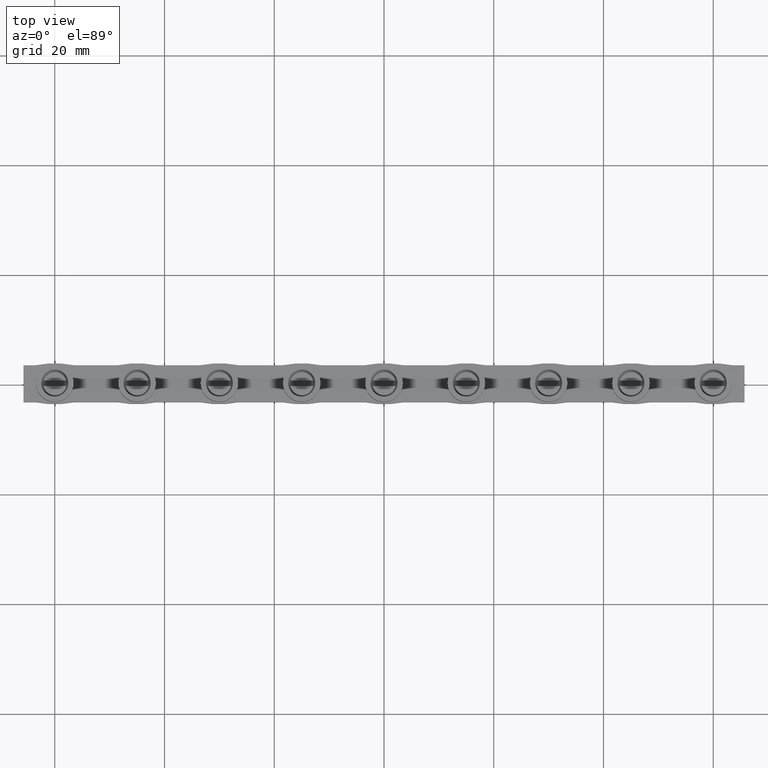
[diagram: clean part render]
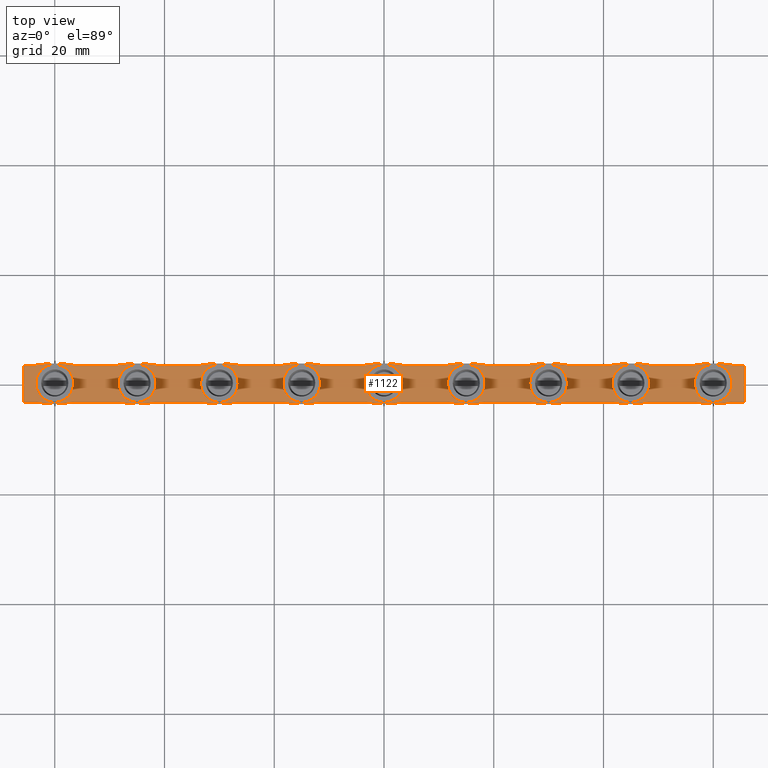
[diagram: same view with one face highlighted and labeled with its STEP entity id]
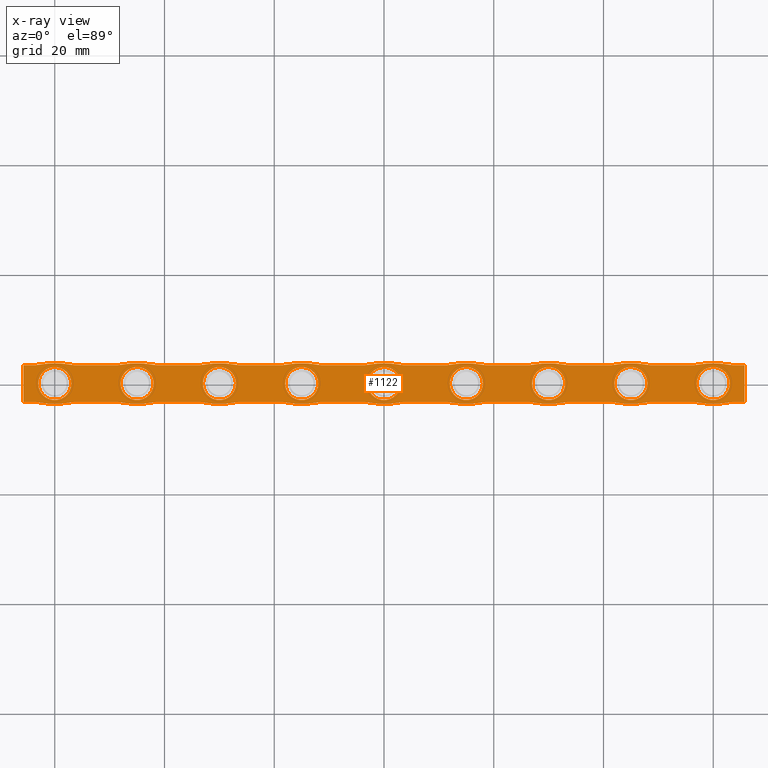
[diagram: x-ray of the same camera — body ghosted, the highlighted face saturated]
A machine part, top view. The second image highlights one B-rep face of the part: STEP entity #1122.
The next image is the same camera in x-ray: the body ghosted, the highlighted face saturated — about 0% of this face is hidden behind the body in this view.
In plain terms, the highlighted planar face has unit normal (0, 0, -1).
Its self-contained STEP definition (entity closure, byte-faithful):
#1122 = ADVANCED_FACE ( 'NONE', ( #8732, #8731, #8769, #8763, #8771, #8749, #8738, #8748, #8773, #8761 ), #8745, .F. ) ;
#2181 = AXIS2_PLACEMENT_3D ( 'NONE', #8752, #8737, #8774 ) ;
#4023 = VERTEX_POINT ( 'NONE', #14222 ) ;
#4052 = VERTEX_POINT ( 'NONE', #14217 ) ;
#4059 = VERTEX_POINT ( 'NONE', #14235 ) ;
#4088 = VERTEX_POINT ( 'NONE', #14246 ) ;
#4102 = VERTEX_POINT ( 'NONE', #14281 ) ;
#4116 = VERTEX_POINT ( 'NONE', #14343 ) ;
#4152 = VERTEX_POINT ( 'NONE', #14303 ) ;
#4160 = VERTEX_POINT ( 'NONE', #14329 ) ;
#4166 = VERTEX_POINT ( 'NONE', #14304 ) ;
#4176 = VERTEX_POINT ( 'NONE', #14376 ) ;
#4199 = VERTEX_POINT ( 'NONE', #14369 ) ;
#4212 = VERTEX_POINT ( 'NONE', #14362 ) ;
#4225 = VERTEX_POINT ( 'NONE', #14351 ) ;
#4252 = VERTEX_POINT ( 'NONE', #14422 ) ;
#4279 = VERTEX_POINT ( 'NONE', #13897 ) ;
#4300 = VERTEX_POINT ( 'NONE', #13877 ) ;
#4305 = VERTEX_POINT ( 'NONE', #13855 ) ;
#4312 = VERTEX_POINT ( 'NONE', #13884 ) ;
#4319 = VERTEX_POINT ( 'NONE', #13899 ) ;
#4328 = VERTEX_POINT ( 'NONE', #13881 ) ;
#4329 = VERTEX_POINT ( 'NONE', #13912 ) ;
#4330 = VERTEX_POINT ( 'NONE', #13885 ) ;
#4345 = VERTEX_POINT ( 'NONE', #14115 ) ;
#4366 = VERTEX_POINT ( 'NONE', #7494 ) ;
#4367 = VERTEX_POINT ( 'NONE', #7005 ) ;
#4376 = VERTEX_POINT ( 'NONE', #7000 ) ;
#4377 = VERTEX_POINT ( 'NONE', #7007 ) ;
#4378 = VERTEX_POINT ( 'NONE', #6986 ) ;
#4379 = VERTEX_POINT ( 'NONE', #6987 ) ;
#4380 = VERTEX_POINT ( 'NONE', #7008 ) ;
#4381 = VERTEX_POINT ( 'NONE', #7011 ) ;
#4382 = VERTEX_POINT ( 'NONE', #7009 ) ;
#4383 = VERTEX_POINT ( 'NONE', #7010 ) ;
#4384 = VERTEX_POINT ( 'NONE', #6999 ) ;
#4385 = VERTEX_POINT ( 'NONE', #7012 ) ;
#4386 = VERTEX_POINT ( 'NONE', #7001 ) ;
#4387 = VERTEX_POINT ( 'NONE', #6988 ) ;
#4388 = VERTEX_POINT ( 'NONE', #6990 ) ;
#4389 = VERTEX_POINT ( 'NONE', #6991 ) ;
#4390 = VERTEX_POINT ( 'NONE', #6994 ) ;
#4391 = VERTEX_POINT ( 'NONE', #6995 ) ;
#4392 = VERTEX_POINT ( 'NONE', #6996 ) ;
#4393 = VERTEX_POINT ( 'NONE', #6997 ) ;
#4394 = VERTEX_POINT ( 'NONE', #7002 ) ;
#4395 = VERTEX_POINT ( 'NONE', #6998 ) ;
#4396 = VERTEX_POINT ( 'NONE', #7003 ) ;
#4397 = VERTEX_POINT ( 'NONE', #7034 ) ;
#4398 = VERTEX_POINT ( 'NONE', #7028 ) ;
#4399 = VERTEX_POINT ( 'NONE', #7033 ) ;
#4400 = VERTEX_POINT ( 'NONE', #7035 ) ;
#4401 = VERTEX_POINT ( 'NONE', #7041 ) ;
#4402 = VERTEX_POINT ( 'NONE', #7019 ) ;
#4403 = VERTEX_POINT ( 'NONE', #7025 ) ;
#4404 = VERTEX_POINT ( 'NONE', #7017 ) ;
#4410 = VERTEX_POINT ( 'NONE', #7024 ) ;
#4412 = VERTEX_POINT ( 'NONE', #7029 ) ;
#4415 = VERTEX_POINT ( 'NONE', #7020 ) ;
#4416 = VERTEX_POINT ( 'NONE', #7031 ) ;
#4766 = ORIENTED_EDGE ( 'NONE', *, *, #11951, .F. ) ;
#4768 = ORIENTED_EDGE ( 'NONE', *, *, #11906, .T. ) ;
#4769 = ORIENTED_EDGE ( 'NONE', *, *, #11987, .F. ) ;
#4773 = ORIENTED_EDGE ( 'NONE', *, *, #11664, .T. ) ;
#4779 = ORIENTED_EDGE ( 'NONE', *, *, #11761, .T. ) ;
#4782 = ORIENTED_EDGE ( 'NONE', *, *, #11954, .T. ) ;
#4783 = ORIENTED_EDGE ( 'NONE', *, *, #11996, .F. ) ;
#4787 = ORIENTED_EDGE ( 'NONE', *, *, #12048, .T. ) ;
#4790 = ORIENTED_EDGE ( 'NONE', *, *, #11997, .F. ) ;
#4796 = ORIENTED_EDGE ( 'NONE', *, *, #11980, .F. ) ;
#4798 = ORIENTED_EDGE ( 'NONE', *, *, #12031, .T. ) ;
#4799 = ORIENTED_EDGE ( 'NONE', *, *, #12000, .T. ) ;
#4800 = ORIENTED_EDGE ( 'NONE', *, *, #12007, .T. ) ;
#4802 = ORIENTED_EDGE ( 'NONE', *, *, #11880, .T. ) ;
#4803 = ORIENTED_EDGE ( 'NONE', *, *, #11982, .T. ) ;
#4805 = ORIENTED_EDGE ( 'NONE', *, *, #11919, .F. ) ;
#4806 = ORIENTED_EDGE ( 'NONE', *, *, #11985, .F. ) ;
#4807 = ORIENTED_EDGE ( 'NONE', *, *, #11986, .F. ) ;
#4808 = ORIENTED_EDGE ( 'NONE', *, *, #12046, .T. ) ;
#4809 = ORIENTED_EDGE ( 'NONE', *, *, #11960, .F. ) ;
#4810 = ORIENTED_EDGE ( 'NONE', *, *, #11958, .F. ) ;
#4811 = ORIENTED_EDGE ( 'NONE', *, *, #11947, .F. ) ;
#4813 = ORIENTED_EDGE ( 'NONE', *, *, #11918, .F. ) ;
#4814 = ORIENTED_EDGE ( 'NONE', *, *, #11801, .F. ) ;
#4818 = ORIENTED_EDGE ( 'NONE', *, *, #11973, .F. ) ;
#4819 = ORIENTED_EDGE ( 'NONE', *, *, #11925, .F. ) ;
#4822 = ORIENTED_EDGE ( 'NONE', *, *, #12006, .F. ) ;
#4823 = ORIENTED_EDGE ( 'NONE', *, *, #12035, .F. ) ;
#4824 = ORIENTED_EDGE ( 'NONE', *, *, #12058, .T. ) ;
#4826 = ORIENTED_EDGE ( 'NONE', *, *, #11968, .T. ) ;
#4827 = ORIENTED_EDGE ( 'NONE', *, *, #11949, .F. ) ;
#4831 = ORIENTED_EDGE ( 'NONE', *, *, #11666, .T. ) ;
#4832 = ORIENTED_EDGE ( 'NONE', *, *, #11993, .F. ) ;
#4833 = ORIENTED_EDGE ( 'NONE', *, *, #11788, .T. ) ;
#4842 = ORIENTED_EDGE ( 'NONE', *, *, #11991, .F. ) ;
#4844 = ORIENTED_EDGE ( 'NONE', *, *, #11963, .T. ) ;
#4848 = ORIENTED_EDGE ( 'NONE', *, *, #11967, .T. ) ;
#4849 = ORIENTED_EDGE ( 'NONE', *, *, #11945, .F. ) ;
#4852 = ORIENTED_EDGE ( 'NONE', *, *, #12003, .F. ) ;
#4853 = ORIENTED_EDGE ( 'NONE', *, *, #12040, .F. ) ;
#4854 = ORIENTED_EDGE ( 'NONE', *, *, #11990, .F. ) ;
#4855 = ORIENTED_EDGE ( 'NONE', *, *, #11981, .F. ) ;
#4859 = ORIENTED_EDGE ( 'NONE', *, *, #11979, .F. ) ;
#4863 = ORIENTED_EDGE ( 'NONE', *, *, #12017, .F. ) ;
#4864 = ORIENTED_EDGE ( 'NONE', *, *, #12027, .F. ) ;
#4865 = ORIENTED_EDGE ( 'NONE', *, *, #12013, .F. ) ;
#4866 = ORIENTED_EDGE ( 'NONE', *, *, #12051, .F. ) ;
#4868 = ORIENTED_EDGE ( 'NONE', *, *, #12047, .F. ) ;
#4870 = ORIENTED_EDGE ( 'NONE', *, *, #11988, .T. ) ;
#4871 = ORIENTED_EDGE ( 'NONE', *, *, #11978, .F. ) ;
#4872 = ORIENTED_EDGE ( 'NONE', *, *, #12043, .T. ) ;
#4873 = ORIENTED_EDGE ( 'NONE', *, *, #11953, .T. ) ;
#4879 = ORIENTED_EDGE ( 'NONE', *, *, #11989, .T. ) ;
#4883 = ORIENTED_EDGE ( 'NONE', *, *, #12053, .F. ) ;
#4889 = ORIENTED_EDGE ( 'NONE', *, *, #12050, .T. ) ;
#4890 = ORIENTED_EDGE ( 'NONE', *, *, #11689, .T. ) ;
#4909 = ORIENTED_EDGE ( 'NONE', *, *, #11658, .T. ) ;
#4953 = ORIENTED_EDGE ( 'NONE', *, *, #12032, .T. ) ;
#5800 = EDGE_LOOP ( 'NONE', ( #4822, #4814 ) ) ;
#5801 = EDGE_LOOP ( 'NONE', ( #4909, #4953 ) ) ;
#5803 = EDGE_LOOP ( 'NONE', ( #4890, #4798 ) ) ;
#5804 = EDGE_LOOP ( 'NONE', ( #4833, #4879 ) ) ;
#5813 = EDGE_LOOP ( 'NONE', ( #4779, #4826 ) ) ;
#5824 = EDGE_LOOP ( 'NONE', ( #4768, #4800 ) ) ;
#5829 = EDGE_LOOP ( 'NONE', ( #4819, #4810, #4849, #4811, #4813, #4805, #4855, #4806, #4827, #4871, #4852, #4807, #4859, #4796, #4769, #4809, #4790, #4766, #4818, #4803, #4823, #4824, #4787, #4808, #4844, #4872, #4870, #4799, #4853, #4873, #4783, #4854, #4868, #4863, #4842, #4832, #4865, #4864, #4883, #4866 ) ) ;
#5830 = EDGE_LOOP ( 'NONE', ( #4773, #4889 ) ) ;
#5841 = EDGE_LOOP ( 'NONE', ( #4831, #4848 ) ) ;
#5843 = EDGE_LOOP ( 'NONE', ( #4802, #4782 ) ) ;
#6986 = CARTESIAN_POINT ( 'NONE',  ( 33.50000000000169800, 3.350000000000149300, -0.9000000000000014700 ) ) ;
#6987 = CARTESIAN_POINT ( 'NONE',  ( 71.50000000000156300, 3.350000000000323800, -0.9000000000000014700 ) ) ;
#6988 = CARTESIAN_POINT ( 'NONE',  ( 18.50000000000169500, -3.349999999999860200, -0.9000000000000014700 ) ) ;
#6990 = CARTESIAN_POINT ( 'NONE',  ( 93.50000000000169100, 3.350000000000391300, -0.9000000000000014700 ) ) ;
#6991 = CARTESIAN_POINT ( 'NONE',  ( -3.500000000002025000, -3.349999999999915700, -0.9000000000000014700 ) ) ;
#6994 = CARTESIAN_POINT ( 'NONE',  ( 78.50000000000169100, 3.350000000000330900, -0.9000000000000014700 ) ) ;
#6995 = CARTESIAN_POINT ( 'NONE',  ( 63.50000000000169100, 3.350000000000270100, -0.9000000000000014700 ) ) ;
#6996 = CARTESIAN_POINT ( 'NONE',  ( -5.700000000000000200, 3.350000000000084500, -0.9000000000000014700 ) ) ;
#6997 = CARTESIAN_POINT ( 'NONE',  ( 56.50000000000156300, 3.350000000000263000, -0.9000000000000014700 ) ) ;
#6998 = CARTESIAN_POINT ( 'NONE',  ( 41.50000000000156300, 3.350000000000202100, -0.9000000000000014700 ) ) ;
#6999 = CARTESIAN_POINT ( 'NONE',  ( 101.5000000000015600, 3.350000000000444600, -0.9000000000000014700 ) ) ;
#7000 = CARTESIAN_POINT ( 'NONE',  ( 123.5000000000016900, 3.350000000000512600, -0.9000000000000014700 ) ) ;
#7001 = CARTESIAN_POINT ( 'NONE',  ( 33.50000000000368100, -3.349999999999852200, -0.9000000000000014700 ) ) ;
#7002 = CARTESIAN_POINT ( 'NONE',  ( 63.50000000000368100, -3.349999999999731400, -0.9000000000000014700 ) ) ;
#7003 = CARTESIAN_POINT ( 'NONE',  ( 11.50000000000156100, 3.350000000000081400, -0.9000000000000014700 ) ) ;
#7005 = CARTESIAN_POINT ( 'NONE',  ( 125.7000000000016400, 3.350000000000511700, -0.9000000000000014700 ) ) ;
#7007 = CARTESIAN_POINT ( 'NONE',  ( -3.500000000000049700, 3.350000000000085800, -0.9000000000000014700 ) ) ;
#7008 = CARTESIAN_POINT ( 'NONE',  ( 18.50000000000169500, 3.350000000000141800, -0.9000000000000014700 ) ) ;
#7009 = CARTESIAN_POINT ( 'NONE',  ( 101.4999999999999100, -3.349999999999579100, -0.9000000000000014700 ) ) ;
#7010 = CARTESIAN_POINT ( 'NONE',  ( 3.500000000000087900, 3.350000000000080500, -0.9000000000000014700 ) ) ;
#7011 = CARTESIAN_POINT ( 'NONE',  ( 108.5000000000036800, -3.349999999999549300, -0.9000000000000014700 ) ) ;
#7012 = CARTESIAN_POINT ( 'NONE',  ( 116.4999999999999100, -3.349999999999518300, -0.9000000000000014700 ) ) ;
#7017 = CARTESIAN_POINT ( 'NONE',  ( 86.49999999999991500, -3.349999999999639900, -0.9000000000000014700 ) ) ;
#7019 = CARTESIAN_POINT ( 'NONE',  ( 86.50000000000156300, 3.350000000000383800, -0.9000000000000014700 ) ) ;
#7020 = CARTESIAN_POINT ( 'NONE',  ( 78.50000000000368100, -3.349999999999670600, -0.9000000000000014700 ) ) ;
#7024 = CARTESIAN_POINT ( 'NONE',  ( 93.50000000000368100, -3.349999999999610200, -0.9000000000000014700 ) ) ;
#7025 = CARTESIAN_POINT ( 'NONE',  ( 11.49999999999990900, -3.349999999999942400, -0.9000000000000014700 ) ) ;
#7028 = CARTESIAN_POINT ( 'NONE',  ( 48.50000000000368100, -3.349999999999791800, -0.9000000000000014700 ) ) ;
#7029 = CARTESIAN_POINT ( 'NONE',  ( 71.49999999999991500, -3.349999999999699900, -0.9000000000000014700 ) ) ;
#7031 = CARTESIAN_POINT ( 'NONE',  ( 41.49999999999991500, -3.349999999999821600, -0.9000000000000014700 ) ) ;
#7033 = CARTESIAN_POINT ( 'NONE',  ( -5.699999999999996600, -3.349999999999916600, -0.9000000000000014700 ) ) ;
#7034 = CARTESIAN_POINT ( 'NONE',  ( 3.500000000001742600, -3.349999999999943200, -0.9000000000000014700 ) ) ;
#7035 = CARTESIAN_POINT ( 'NONE',  ( 56.49999999999991500, -3.349999999999760700, -0.9000000000000014700 ) ) ;
#7041 = CARTESIAN_POINT ( 'NONE',  ( 48.50000000000169100, 3.350000000000209700, -0.9000000000000014700 ) ) ;
#7494 = CARTESIAN_POINT ( 'NONE',  ( 26.49999999999990800, -3.349999999999881500, -0.9000000000000014700 ) ) ;
#7534 = LINE ( 'NONE', #7550, #13035 ) ;
#7541 = DIRECTION ( 'NONE',  ( -1.000000000000000000, -2.944367993170587500E-016, 0.0000000000000000000 ) ) ;
#7548 = CARTESIAN_POINT ( 'NONE',  ( 90.00000000000164800, 13.97500000000509400, -0.9000000000000014700 ) ) ;
#7550 = CARTESIAN_POINT ( 'NONE',  ( 31.15000000000001300, 3.350000000000084500, -0.9000000000000014700 ) ) ;
#7556 = DIRECTION ( 'NONE',  ( -1.000000000000000000, -1.245679091791856200E-016, -0.0000000000000000000 ) ) ;
#7562 = DIRECTION ( 'NONE',  ( -0.0000000000000000000, -0.0000000000000000000, -1.000000000000000000 ) ) ;
#7567 = DIRECTION ( 'NONE',  ( 1.000000000000000000, 2.944367993170585000E-016, 0.0000000000000000000 ) ) ;
#7568 = CARTESIAN_POINT ( 'NONE',  ( 103.8500000000016300, -3.349999999999492100, -0.9000000000000014700 ) ) ;
#7570 = LINE ( 'NONE', #7600, #12914 ) ;
#7576 = LINE ( 'NONE', #7593, #12899 ) ;
#7582 = CARTESIAN_POINT ( 'NONE',  ( 120.0000000000016500, 13.97500000000521500, -0.9000000000000014700 ) ) ;
#7584 = DIRECTION ( 'NONE',  ( -1.000000000000000000, -1.245679091791855700E-016, -0.0000000000000000000 ) ) ;
#7585 = DIRECTION ( 'NONE',  ( -1.000000000000000000, -2.944367993170587500E-016, 0.0000000000000000000 ) ) ;
#7587 = CARTESIAN_POINT ( 'NONE',  ( 105.0000000000016500, -13.97500000000442500, -0.9000000000000014700 ) ) ;
#7588 = DIRECTION ( 'NONE',  ( -0.0000000000000000000, -0.0000000000000000000, -1.000000000000000000 ) ) ;
#7589 = DIRECTION ( 'NONE',  ( -0.0000000000000000000, -0.0000000000000000000, -1.000000000000000000 ) ) ;
#7593 = CARTESIAN_POINT ( 'NONE',  ( 46.15000000000001300, -3.349999999999856600, -0.9000000000000014700 ) ) ;
#7594 = DIRECTION ( 'NONE',  ( 1.000000000000000000, 1.245679091791856200E-016, -0.0000000000000000000 ) ) ;
#7600 = CARTESIAN_POINT ( 'NONE',  ( 13.85000000000164300, 3.350000000000145800, -0.9000000000000014700 ) ) ;
#7601 = DIRECTION ( 'NONE',  ( 1.000000000000000000, 1.245679091791855700E-016, -0.0000000000000000000 ) ) ;
#7605 = LINE ( 'NONE', #7568, #12956 ) ;
#7607 = LINE ( 'NONE', #7608, #12957 ) ;
#7608 = CARTESIAN_POINT ( 'NONE',  ( 28.85000000000164300, 3.350000000000206100, -0.9000000000000014700 ) ) ;
#7609 = CARTESIAN_POINT ( 'NONE',  ( 15.00000000000165000, 1.868518637687989600E-015, -0.9000000000000014700 ) ) ;
#7611 = CARTESIAN_POINT ( 'NONE',  ( 90.00000000000164800, 3.046974012975282300E-013, -0.9000000000000014700 ) ) ;
#7612 = DIRECTION ( 'NONE',  ( 0.0000000000000000000, 0.0000000000000000000, -1.000000000000000000 ) ) ;
#7614 = DIRECTION ( 'NONE',  ( 1.000000000000000000, 2.491358183583654200E-016, 0.0000000000000000000 ) ) ;
#7616 = CARTESIAN_POINT ( 'NONE',  ( 88.85000000000164300, -3.349999999999552400, -0.9000000000000014700 ) ) ;
#7619 = CARTESIAN_POINT ( 'NONE',  ( 45.00000000000164800, 1.230000717016241000E-013, -0.9000000000000014700 ) ) ;
#7622 = DIRECTION ( 'NONE',  ( 0.0000000000000000000, 0.0000000000000000000, -1.000000000000000000 ) ) ;
#7628 = DIRECTION ( 'NONE',  ( 1.000000000000000000, 2.491358183583736600E-016, 0.0000000000000000000 ) ) ;
#7629 = DIRECTION ( 'NONE',  ( 0.0000000000000000000, 0.0000000000000000000, -1.000000000000000000 ) ) ;
#7631 = DIRECTION ( 'NONE',  ( 1.000000000000000000, 1.245679091791855700E-016, -0.0000000000000000000 ) ) ;
#7634 = LINE ( 'NONE', #7616, #12904 ) ;
#7635 = LINE ( 'NONE', #7649, #12916 ) ;
#7637 = DIRECTION ( 'NONE',  ( 2.009125974575783600E-016, -1.000000000000000000, 0.0000000000000000000 ) ) ;
#7638 = DIRECTION ( 'NONE',  ( 1.000000000000000000, 2.491358183583712400E-016, 0.0000000000000000000 ) ) ;
#7641 = DIRECTION ( 'NONE',  ( -1.000000000000000000, -1.245679091791855700E-016, -0.0000000000000000000 ) ) ;
#7649 = CARTESIAN_POINT ( 'NONE',  ( -5.699999999999996600, -3.349999999999916200, -0.9000000000000014700 ) ) ;
#7656 = DIRECTION ( 'NONE',  ( 1.000000000000000000, 2.944367993170587500E-016, 0.0000000000000000000 ) ) ;
#7657 = CARTESIAN_POINT ( 'NONE',  ( 43.85000000000163600, 3.350000000000267000, -0.9000000000000014700 ) ) ;
#7658 = DIRECTION ( 'NONE',  ( 1.000000000000000000, 1.245679091791855700E-016, -0.0000000000000000000 ) ) ;
#7659 = CARTESIAN_POINT ( 'NONE',  ( 46.15000000000001300, 3.350000000000145300, -0.9000000000000014700 ) ) ;
#7660 = CARTESIAN_POINT ( 'NONE',  ( 30.00000000000165200, -13.97500000000472700, -0.9000000000000014700 ) ) ;
#7661 = DIRECTION ( 'NONE',  ( -1.000000000000000000, -1.245679091791856200E-016, -0.0000000000000000000 ) ) ;
#7666 = DIRECTION ( 'NONE',  ( 1.000000000000000000, 1.245679091791855700E-016, -0.0000000000000000000 ) ) ;
#7670 = LINE ( 'NONE', #7678, #13010 ) ;
#7678 = CARTESIAN_POINT ( 'NONE',  ( 73.85000000000164300, 3.350000000000387800, -0.9000000000000014700 ) ) ;
#7680 = LINE ( 'NONE', #7657, #12974 ) ;
#7682 = DIRECTION ( 'NONE',  ( 1.000000000000000000, 2.944367993170586000E-016, 0.0000000000000000000 ) ) ;
#7685 = DIRECTION ( 'NONE',  ( -0.0000000000000000000, -0.0000000000000000000, -1.000000000000000000 ) ) ;
#7687 = DIRECTION ( 'NONE',  ( -0.0000000000000000000, -0.0000000000000000000, -1.000000000000000000 ) ) ;
#7688 = CARTESIAN_POINT ( 'NONE',  ( 75.00000000000164800, -13.97500000000454500, -0.9000000000000014700 ) ) ;
#7689 = DIRECTION ( 'NONE',  ( 1.000000000000000000, 2.944367993170585000E-016, 0.0000000000000000000 ) ) ;
#7691 = LINE ( 'NONE', #7659, #13018 ) ;
#7692 = CARTESIAN_POINT ( 'NONE',  ( 120.0000000000016500, -13.97500000000436400, -0.9000000000000014700 ) ) ;
#7693 = DIRECTION ( 'NONE',  ( -0.0000000000000000000, -0.0000000000000000000, -1.000000000000000000 ) ) ;
#7694 = CARTESIAN_POINT ( 'NONE',  ( 58.85000000000163600, 3.350000000000327400, -0.9000000000000014700 ) ) ;
#7695 = CARTESIAN_POINT ( 'NONE',  ( 60.00000000000164100, 13.97500000000497300, -0.9000000000000014700 ) ) ;
#7697 = DIRECTION ( 'NONE',  ( 0.0000000000000000000, 0.0000000000000000000, 1.000000000000000000 ) ) ;
#7698 = DIRECTION ( 'NONE',  ( 1.000000000000000000, 2.491358183583736600E-016, 0.0000000000000000000 ) ) ;
#7699 = CARTESIAN_POINT ( 'NONE',  ( 30.00000000000164500, 13.97500000000485100, -0.9000000000000014700 ) ) ;
#7700 = DIRECTION ( 'NONE',  ( -0.0000000000000000000, -0.0000000000000000000, -1.000000000000000000 ) ) ;
#7701 = DIRECTION ( 'NONE',  ( 0.0000000000000000000, 0.0000000000000000000, -1.000000000000000000 ) ) ;
#7703 = LINE ( 'NONE', #7720, #13001 ) ;
#7704 = LINE ( 'NONE', #7717, #12990 ) ;
#7705 = DIRECTION ( 'NONE',  ( 1.000000000000000000, 1.245679091791855700E-016, -0.0000000000000000000 ) ) ;
#7706 = CARTESIAN_POINT ( 'NONE',  ( 60.00000000000164800, 1.835658482335921500E-013, -0.9000000000000014700 ) ) ;
#7707 = DIRECTION ( 'NONE',  ( -1.000000000000000000, -1.245679091791855700E-016, -0.0000000000000000000 ) ) ;
#7711 = CARTESIAN_POINT ( 'NONE',  ( 88.85000000000164300, 3.350000000000448600, -0.9000000000000014700 ) ) ;
#7712 = DIRECTION ( 'NONE',  ( -1.000000000000000000, -2.944367993170586000E-016, 0.0000000000000000000 ) ) ;
#7714 = CARTESIAN_POINT ( 'NONE',  ( 1.734289795103002200E-015, 13.97500000000478900, -0.9000000000000014700 ) ) ;
#7715 = DIRECTION ( 'NONE',  ( -0.0000000000000000000, -0.0000000000000000000, -1.000000000000000000 ) ) ;
#7716 = CARTESIAN_POINT ( 'NONE',  ( 60.00000000000164800, -13.97500000000460600, -0.9000000000000014700 ) ) ;
#7717 = CARTESIAN_POINT ( 'NONE',  ( 13.85000000000164300, -3.349999999999855300, -0.9000000000000014700 ) ) ;
#7718 = DIRECTION ( 'NONE',  ( -0.0000000000000000000, -0.0000000000000000000, -1.000000000000000000 ) ) ;
#7720 = CARTESIAN_POINT ( 'NONE',  ( 43.85000000000163600, -3.349999999999734100, -0.9000000000000014700 ) ) ;
#7722 = DIRECTION ( 'NONE',  ( 1.000000000000000000, 1.245679091791855700E-016, -0.0000000000000000000 ) ) ;
#7723 = DIRECTION ( 'NONE',  ( 1.000000000000000000, 2.944367993170587500E-016, 0.0000000000000000000 ) ) ;
#7730 = LINE ( 'NONE', #7711, #12975 ) ;
#7731 = LINE ( 'NONE', #7694, #12984 ) ;
#7732 = DIRECTION ( 'NONE',  ( 1.000000000000000000, 0.0000000000000000000, 0.0000000000000000000 ) ) ;
#7733 = DIRECTION ( 'NONE',  ( -1.000000000000000000, -1.245679091791855700E-016, -0.0000000000000000000 ) ) ;
#7739 = CARTESIAN_POINT ( 'NONE',  ( 90.00000000000164800, -13.97500000000448300, -0.9000000000000014700 ) ) ;
#7740 = CARTESIAN_POINT ( 'NONE',  ( 31.15000000000001300, -3.349999999999917500, -0.9000000000000014700 ) ) ;
#7745 = DIRECTION ( 'NONE',  ( -0.0000000000000000000, -0.0000000000000000000, -1.000000000000000000 ) ) ;
#7746 = CARTESIAN_POINT ( 'NONE',  ( 30.00000000000165200, 6.243429516965604400E-014, -0.9000000000000014700 ) ) ;
#7747 = DIRECTION ( 'NONE',  ( -1.000000000000000000, -2.944367993170586500E-016, 0.0000000000000000000 ) ) ;
#7748 = DIRECTION ( 'NONE',  ( 1.000000000000000000, 1.245679091791856200E-016, -0.0000000000000000000 ) ) ;
#7754 = CARTESIAN_POINT ( 'NONE',  ( 45.00000000000164800, -13.97500000000466600, -0.9000000000000014700 ) ) ;
#7756 = DIRECTION ( 'NONE',  ( 0.0000000000000000000, 0.0000000000000000000, -1.000000000000000000 ) ) ;
#7757 = DIRECTION ( 'NONE',  ( 1.000000000000000000, 2.491358183583695200E-016, 0.0000000000000000000 ) ) ;
#7758 = DIRECTION ( 'NONE',  ( 1.000000000000000000, 2.944367993170587500E-016, 0.0000000000000000000 ) ) ;
#7769 = DIRECTION ( 'NONE',  ( 0.0000000000000000000, 0.0000000000000000000, 1.000000000000000000 ) ) ;
#7770 = DIRECTION ( 'NONE',  ( -1.000000000000000000, 0.0000000000000000000, 0.0000000000000000000 ) ) ;
#7772 = DIRECTION ( 'NONE',  ( 1.000000000000000000, 2.944367993170585000E-016, 0.0000000000000000000 ) ) ;
#7773 = DIRECTION ( 'NONE',  ( -0.0000000000000000000, -0.0000000000000000000, -1.000000000000000000 ) ) ;
#7776 = LINE ( 'NONE', #7740, #13020 ) ;
#7779 = CARTESIAN_POINT ( 'NONE',  ( 0.0000000000000000000, 0.0000000000000000000, -0.9000000000000014700 ) ) ;
#7788 = DIRECTION ( 'NONE',  ( -0.0000000000000000000, -0.0000000000000000000, -1.000000000000000000 ) ) ;
#7789 = CARTESIAN_POINT ( 'NONE',  ( 28.85000000000164300, -3.349999999999794900, -0.9000000000000014700 ) ) ;
#7800 = DIRECTION ( 'NONE',  ( -1.000000000000000000, -1.245679091791855700E-016, -0.0000000000000000000 ) ) ;
#7817 = CARTESIAN_POINT ( 'NONE',  ( 75.00000000000164800, 13.97500000000503400, -0.9000000000000014700 ) ) ;
#7825 = DIRECTION ( 'NONE',  ( -1.000000000000000000, -2.944367993170587500E-016, 0.0000000000000000000 ) ) ;
#7835 = LINE ( 'NONE', #7789, #13047 ) ;
#7859 = CARTESIAN_POINT ( 'NONE',  ( 58.85000000000163600, -3.349999999999673700, -0.9000000000000014700 ) ) ;
#7860 = DIRECTION ( 'NONE',  ( -1.000000000000000000, -1.245679091791855700E-016, -0.0000000000000000000 ) ) ;
#7875 = LINE ( 'NONE', #7859, #13060 ) ;
#7905 = DIRECTION ( 'NONE',  ( 0.0000000000000000000, 0.0000000000000000000, -1.000000000000000000 ) ) ;
#7906 = DIRECTION ( 'NONE',  ( 0.0000000000000000000, 0.0000000000000000000, -1.000000000000000000 ) ) ;
#7914 = DIRECTION ( 'NONE',  ( 1.000000000000000000, 2.491358183583654200E-016, 0.0000000000000000000 ) ) ;
#7916 = CARTESIAN_POINT ( 'NONE',  ( 75.00000000000164800, 2.441316247655602000E-013, -0.9000000000000014700 ) ) ;
#7920 = DIRECTION ( 'NONE',  ( 1.000000000000000000, 2.491358183583654200E-016, 0.0000000000000000000 ) ) ;
#7940 = CARTESIAN_POINT ( 'NONE',  ( 120.0000000000016500, 4.258289543614643900E-013, -0.9000000000000014700 ) ) ;
#7945 = DIRECTION ( 'NONE',  ( -0.0000000000000000000, -0.0000000000000000000, -1.000000000000000000 ) ) ;
#7946 = CARTESIAN_POINT ( 'NONE',  ( 15.00000000000164500, 13.97500000000479000, -0.9000000000000014700 ) ) ;
#7961 = DIRECTION ( 'NONE',  ( -0.0000000000000000000, -0.0000000000000000000, -1.000000000000000000 ) ) ;
#7963 = DIRECTION ( 'NONE',  ( -1.000000000000000000, -2.944367993170586500E-016, 0.0000000000000000000 ) ) ;
#7969 = CARTESIAN_POINT ( 'NONE',  ( 15.00000000000164800, -13.97500000000478700, -0.9000000000000014700 ) ) ;
#7975 = LINE ( 'NONE', #8006, #13027 ) ;
#7979 = DIRECTION ( 'NONE',  ( 1.000000000000000000, 2.944367993170586000E-016, 0.0000000000000000000 ) ) ;
#7993 = LINE ( 'NONE', #8017, #13075 ) ;
#7995 = DIRECTION ( 'NONE',  ( 0.0000000000000000000, 0.0000000000000000000, -1.000000000000000000 ) ) ;
#7996 = DIRECTION ( 'NONE',  ( 1.000000000000000000, 1.245679091791856200E-016, -0.0000000000000000000 ) ) ;
#7997 = DIRECTION ( 'NONE',  ( -1.000000000000000000, 0.0000000000000000000, 0.0000000000000000000 ) ) ;
#7998 = DIRECTION ( 'NONE',  ( -1.000000000000000000, -1.245679091791855700E-016, -0.0000000000000000000 ) ) ;
#8002 = DIRECTION ( 'NONE',  ( 1.000000000000000000, 2.491358183583654200E-016, 0.0000000000000000000 ) ) ;
#8005 = DIRECTION ( 'NONE',  ( -1.000000000000000000, -2.944367993170586500E-016, 0.0000000000000000000 ) ) ;
#8006 = CARTESIAN_POINT ( 'NONE',  ( 16.15000000000000900, -3.349999999999913900, -0.9000000000000014700 ) ) ;
#8008 = DIRECTION ( 'NONE',  ( -0.0000000000000000000, -0.0000000000000000000, -1.000000000000000000 ) ) ;
#8012 = DIRECTION ( 'NONE',  ( -1.000000000000000000, -1.245679091791856200E-016, -0.0000000000000000000 ) ) ;
#8013 = CARTESIAN_POINT ( 'NONE',  ( 45.00000000000164100, 13.97500000000491300, -0.9000000000000014700 ) ) ;
#8014 = CARTESIAN_POINT ( 'NONE',  ( 5.128276275852789100E-015, -13.97500000000478900, -0.9000000000000014700 ) ) ;
#8015 = CARTESIAN_POINT ( 'NONE',  ( 73.85000000000164300, -3.349999999999613300, -0.9000000000000014700 ) ) ;
#8017 = CARTESIAN_POINT ( 'NONE',  ( 16.15000000000000900, 3.350000000000087100, -0.9000000000000014700 ) ) ;
#8018 = DIRECTION ( 'NONE',  ( 0.0000000000000000000, 0.0000000000000000000, 1.000000000000000000 ) ) ;
#8019 = LINE ( 'NONE', #8015, #13077 ) ;
#8021 = CARTESIAN_POINT ( 'NONE',  ( 105.0000000000016500, 3.652631778294963100E-013, -0.9000000000000014700 ) ) ;
#8731 = FACE_BOUND ( 'NONE', #5830, .T. ) ;
#8732 = FACE_OUTER_BOUND ( 'NONE', #5829, .T. ) ;
#8737 = DIRECTION ( 'NONE',  ( 0.0000000000000000000, 0.0000000000000000000, -1.000000000000000000 ) ) ;
#8738 = FACE_BOUND ( 'NONE', #5824, .T. ) ;
#8745 = PLANE ( 'NONE',  #2181 ) ;
#8748 = FACE_BOUND ( 'NONE', #5804, .T. ) ;
#8749 = FACE_BOUND ( 'NONE', #5800, .T. ) ;
#8752 = CARTESIAN_POINT ( 'NONE',  ( -47.85000000000001600, -3.349999999999866400, -0.9000000000000014700 ) ) ;
#8761 = FACE_BOUND ( 'NONE', #5801, .T. ) ;
#8763 = FACE_BOUND ( 'NONE', #5813, .T. ) ;
#8769 = FACE_BOUND ( 'NONE', #5803, .T. ) ;
#8771 = FACE_BOUND ( 'NONE', #5843, .T. ) ;
#8773 = FACE_BOUND ( 'NONE', #5841, .T. ) ;
#8774 = DIRECTION ( 'NONE',  ( -1.000000000000000000, 0.0000000000000000000, -0.0000000000000000000 ) ) ;
#11658 = EDGE_CURVE ( 'NONE', #4023, #4059, #12496, .T. ) ;
#11664 = EDGE_CURVE ( 'NONE', #4116, #4052, #12506, .T. ) ;
#11666 = EDGE_CURVE ( 'NONE', #4088, #4102, #12525, .T. ) ;
#11689 = EDGE_CURVE ( 'NONE', #4166, #4160, #12535, .T. ) ;
#11761 = EDGE_CURVE ( 'NONE', #4176, #4212, #12692, .T. ) ;
#11788 = EDGE_CURVE ( 'NONE', #4152, #4199, #12644, .T. ) ;
#11801 = EDGE_CURVE ( 'NONE', #4252, #4225, #12720, .T. ) ;
#11880 = EDGE_CURVE ( 'NONE', #4279, #4305, #12798, .T. ) ;
#11906 = EDGE_CURVE ( 'NONE', #4300, #4312, #12860, .T. ) ;
#11918 = EDGE_CURVE ( 'NONE', #4367, #4345, #16529, .T. ) ;
#11919 = EDGE_CURVE ( 'NONE', #4376, #4367, #16523, .T. ) ;
#11925 = EDGE_CURVE ( 'NONE', #4381, #4382, #12882, .T. ) ;
#11945 = EDGE_CURVE ( 'NONE', #4319, #4385, #12942, .T. ) ;
#11947 = EDGE_CURVE ( 'NONE', #4345, #4319, #7605, .T. ) ;
#11949 = EDGE_CURVE ( 'NONE', #4384, #4329, #12935, .T. ) ;
#11951 = EDGE_CURVE ( 'NONE', #4378, #4395, #7570, .T. ) ;
#11953 = EDGE_CURVE ( 'NONE', #4387, #4366, #7576, .T. ) ;
#11954 = EDGE_CURVE ( 'NONE', #4305, #4279, #12918, .T. ) ;
#11958 = EDGE_CURVE ( 'NONE', #4385, #4381, #7634, .T. ) ;
#11960 = EDGE_CURVE ( 'NONE', #4401, #4393, #7607, .T. ) ;
#11963 = EDGE_CURVE ( 'NONE', #4392, #4399, #7635, .T. ) ;
#11967 = EDGE_CURVE ( 'NONE', #4102, #4088, #12900, .T. ) ;
#11968 = EDGE_CURVE ( 'NONE', #4212, #4176, #12949, .T. ) ;
#11973 = EDGE_CURVE ( 'NONE', #4328, #4378, #12962, .T. ) ;
#11978 = EDGE_CURVE ( 'NONE', #4388, #4384, #7670, .T. ) ;
#11979 = EDGE_CURVE ( 'NONE', #4379, #4390, #13008, .T. ) ;
#11980 = EDGE_CURVE ( 'NONE', #4391, #4379, #7680, .T. ) ;
#11981 = EDGE_CURVE ( 'NONE', #4330, #4376, #13011, .T. ) ;
#11982 = EDGE_CURVE ( 'NONE', #4328, #4380, #7691, .T. ) ;
#11985 = EDGE_CURVE ( 'NONE', #4329, #4330, #7730, .T. ) ;
#11986 = EDGE_CURVE ( 'NONE', #4390, #4402, #7731, .T. ) ;
#11987 = EDGE_CURVE ( 'NONE', #4393, #4391, #13017, .T. ) ;
#11988 = EDGE_CURVE ( 'NONE', #4389, #4397, #12989, .T. ) ;
#11989 = EDGE_CURVE ( 'NONE', #4199, #4152, #12998, .T. ) ;
#11990 = EDGE_CURVE ( 'NONE', #4416, #4386, #7704, .T. ) ;
#11991 = EDGE_CURVE ( 'NONE', #4394, #4400, #12996, .T. ) ;
#11993 = EDGE_CURVE ( 'NONE', #4412, #4394, #7703, .T. ) ;
#11996 = EDGE_CURVE ( 'NONE', #4386, #4366, #12967, .T. ) ;
#11997 = EDGE_CURVE ( 'NONE', #4395, #4401, #12968, .T. ) ;
#12000 = EDGE_CURVE ( 'NONE', #4397, #4403, #7776, .T. ) ;
#12003 = EDGE_CURVE ( 'NONE', #4402, #4388, #13002, .T. ) ;
#12006 = EDGE_CURVE ( 'NONE', #4225, #4252, #12980, .T. ) ;
#12007 = EDGE_CURVE ( 'NONE', #4312, #4300, #12982, .T. ) ;
#12013 = EDGE_CURVE ( 'NONE', #4415, #4412, #13071, .T. ) ;
#12017 = EDGE_CURVE ( 'NONE', #4400, #4398, #7835, .T. ) ;
#12027 = EDGE_CURVE ( 'NONE', #4404, #4415, #7875, .T. ) ;
#12031 = EDGE_CURVE ( 'NONE', #4160, #4166, #13089, .T. ) ;
#12032 = EDGE_CURVE ( 'NONE', #4059, #4023, #13042, .T. ) ;
#12035 = EDGE_CURVE ( 'NONE', #4396, #4380, #13056, .T. ) ;
#12040 = EDGE_CURVE ( 'NONE', #4387, #4403, #13054, .T. ) ;
#12043 = EDGE_CURVE ( 'NONE', #4399, #4389, #7975, .T. ) ;
#12046 = EDGE_CURVE ( 'NONE', #4377, #4392, #7993, .T. ) ;
#12047 = EDGE_CURVE ( 'NONE', #4398, #4416, #13055, .T. ) ;
#12048 = EDGE_CURVE ( 'NONE', #4383, #4377, #13057, .T. ) ;
#12050 = EDGE_CURVE ( 'NONE', #4052, #4116, #13066, .T. ) ;
#12051 = EDGE_CURVE ( 'NONE', #4382, #4410, #8019, .T. ) ;
#12053 = EDGE_CURVE ( 'NONE', #4410, #4404, #13069, .T. ) ;
#12058 = EDGE_CURVE ( 'NONE', #4396, #4383, #7534, .T. ) ;
#12466 = AXIS2_PLACEMENT_3D ( 'NONE', #15759, #15750, #15751 ) ;
#12487 = AXIS2_PLACEMENT_3D ( 'NONE', #15756, #15772, #15781 ) ;
#12496 = CIRCLE ( 'NONE', #12487, 3.000000000000002700 ) ;
#12506 = CIRCLE ( 'NONE', #12466, 3.000000000000002700 ) ;
#12525 = CIRCLE ( 'NONE', #12529, 3.000000000000002700 ) ;
#12529 = AXIS2_PLACEMENT_3D ( 'NONE', #15752, #15753, #15757 ) ;
#12535 = CIRCLE ( 'NONE', #12536, 3.000000000000002700 ) ;
#12536 = AXIS2_PLACEMENT_3D ( 'NONE', #15868, #15837, #15840 ) ;
#12643 = AXIS2_PLACEMENT_3D ( 'NONE', #16084, #16051, #16088 ) ;
#12644 = CIRCLE ( 'NONE', #12702, 3.000000000000002700 ) ;
#12692 = CIRCLE ( 'NONE', #12643, 3.000000000000002700 ) ;
#12702 = AXIS2_PLACEMENT_3D ( 'NONE', #15666, #15667, #15874 ) ;
#12711 = AXIS2_PLACEMENT_3D ( 'NONE', #16145, #16146, #16160 ) ;
#12720 = CIRCLE ( 'NONE', #12711, 2.999999999999999100 ) ;
#12791 = AXIS2_PLACEMENT_3D ( 'NONE', #16397, #16374, #16382 ) ;
#12798 = CIRCLE ( 'NONE', #12791, 2.999999999999999100 ) ;
#12860 = CIRCLE ( 'NONE', #12895, 3.000000000000002700 ) ;
#12866 = VECTOR ( 'NONE', #16545, 1000.000000000000000 ) ;
#12874 = VECTOR ( 'NONE', #16517, 1000.000000000000000 ) ;
#12882 = CIRCLE ( 'NONE', #12884, 17.67500000000478300 ) ;
#12884 = AXIS2_PLACEMENT_3D ( 'NONE', #16522, #16534, #16525 ) ;
#12895 = AXIS2_PLACEMENT_3D ( 'NONE', #16483, #16494, #16495 ) ;
#12899 = VECTOR ( 'NONE', #7594, 1000.000000000000000 ) ;
#12900 = CIRCLE ( 'NONE', #12958, 3.000000000000002700 ) ;
#12904 = VECTOR ( 'NONE', #7641, 1000.000000000000000 ) ;
#12914 = VECTOR ( 'NONE', #7601, 1000.000000000000000 ) ;
#12916 = VECTOR ( 'NONE', #7637, 1000.000000000000000 ) ;
#12918 = CIRCLE ( 'NONE', #12938, 2.999999999999999100 ) ;
#12921 = AXIS2_PLACEMENT_3D ( 'NONE', #7582, #7588, #7585 ) ;
#12935 = CIRCLE ( 'NONE', #12947, 17.67500000000479700 ) ;
#12938 = AXIS2_PLACEMENT_3D ( 'NONE', #7609, #7629, #7638 ) ;
#12942 = CIRCLE ( 'NONE', #12921, 17.67500000000478300 ) ;
#12947 = AXIS2_PLACEMENT_3D ( 'NONE', #7587, #7589, #7567 ) ;
#12949 = CIRCLE ( 'NONE', #12959, 3.000000000000002700 ) ;
#12956 = VECTOR ( 'NONE', #7584, 1000.000000000000000 ) ;
#12957 = VECTOR ( 'NONE', #7631, 1000.000000000000000 ) ;
#12958 = AXIS2_PLACEMENT_3D ( 'NONE', #7611, #7612, #7614 ) ;
#12959 = AXIS2_PLACEMENT_3D ( 'NONE', #7619, #7622, #7628 ) ;
#12962 = CIRCLE ( 'NONE', #13014, 17.67500000000479000 ) ;
#12964 = AXIS2_PLACEMENT_3D ( 'NONE', #7739, #7773, #7758 ) ;
#12967 = CIRCLE ( 'NONE', #13005, 17.67500000000478600 ) ;
#12968 = CIRCLE ( 'NONE', #13019, 17.67500000000479700 ) ;
#12971 = AXIS2_PLACEMENT_3D ( 'NONE', #7706, #7701, #7698 ) ;
#12974 = VECTOR ( 'NONE', #7658, 1000.000000000000000 ) ;
#12975 = VECTOR ( 'NONE', #7722, 1000.000000000000000 ) ;
#12980 = CIRCLE ( 'NONE', #13004, 2.999999999999999100 ) ;
#12982 = CIRCLE ( 'NONE', #12983, 3.000000000000002700 ) ;
#12983 = AXIS2_PLACEMENT_3D ( 'NONE', #7746, #7756, #7757 ) ;
#12984 = VECTOR ( 'NONE', #7705, 1000.000000000000000 ) ;
#12988 = AXIS2_PLACEMENT_3D ( 'NONE', #7692, #7693, #7656 ) ;
#12989 = CIRCLE ( 'NONE', #13007, 17.67500000000478600 ) ;
#12990 = VECTOR ( 'NONE', #7707, 1000.000000000000000 ) ;
#12993 = AXIS2_PLACEMENT_3D ( 'NONE', #7688, #7687, #7689 ) ;
#12996 = CIRCLE ( 'NONE', #13013, 17.67500000000479000 ) ;
#12998 = CIRCLE ( 'NONE', #12971, 3.000000000000002700 ) ;
#13000 = AXIS2_PLACEMENT_3D ( 'NONE', #7716, #7718, #7723 ) ;
#13001 = VECTOR ( 'NONE', #7733, 1000.000000000000000 ) ;
#13002 = CIRCLE ( 'NONE', #12964, 17.67500000000478300 ) ;
#13004 = AXIS2_PLACEMENT_3D ( 'NONE', #7779, #7769, #7770 ) ;
#13005 = AXIS2_PLACEMENT_3D ( 'NONE', #7699, #7700, #7747 ) ;
#13007 = AXIS2_PLACEMENT_3D ( 'NONE', #7714, #7697, #7732 ) ;
#13008 = CIRCLE ( 'NONE', #12993, 17.67500000000479700 ) ;
#13010 = VECTOR ( 'NONE', #7666, 1000.000000000000000 ) ;
#13011 = CIRCLE ( 'NONE', #12988, 17.67500000000478300 ) ;
#13013 = AXIS2_PLACEMENT_3D ( 'NONE', #7695, #7715, #7712 ) ;
#13014 = AXIS2_PLACEMENT_3D ( 'NONE', #7660, #7685, #7682 ) ;
#13017 = CIRCLE ( 'NONE', #13000, 17.67500000000478300 ) ;
#13018 = VECTOR ( 'NONE', #7661, 1000.000000000000000 ) ;
#13019 = AXIS2_PLACEMENT_3D ( 'NONE', #7754, #7745, #7772 ) ;
#13020 = VECTOR ( 'NONE', #7748, 1000.000000000000000 ) ;
#13027 = VECTOR ( 'NONE', #7996, 1000.000000000000000 ) ;
#13032 = AXIS2_PLACEMENT_3D ( 'NONE', #7916, #7906, #7920 ) ;
#13035 = VECTOR ( 'NONE', #7556, 1000.000000000000000 ) ;
#13042 = CIRCLE ( 'NONE', #13072, 3.000000000000002700 ) ;
#13045 = AXIS2_PLACEMENT_3D ( 'NONE', #8013, #8008, #8005 ) ;
#13047 = VECTOR ( 'NONE', #7800, 1000.000000000000000 ) ;
#13054 = CIRCLE ( 'NONE', #13084, 17.67500000000478600 ) ;
#13055 = CIRCLE ( 'NONE', #13045, 17.67500000000478600 ) ;
#13056 = CIRCLE ( 'NONE', #13059, 17.67500000000479000 ) ;
#13057 = CIRCLE ( 'NONE', #13062, 17.67500000000479000 ) ;
#13059 = AXIS2_PLACEMENT_3D ( 'NONE', #7969, #7945, #7979 ) ;
#13060 = VECTOR ( 'NONE', #7860, 1000.000000000000000 ) ;
#13062 = AXIS2_PLACEMENT_3D ( 'NONE', #8014, #8018, #7997 ) ;
#13064 = AXIS2_PLACEMENT_3D ( 'NONE', #7817, #7788, #7825 ) ;
#13066 = CIRCLE ( 'NONE', #13068, 3.000000000000002700 ) ;
#13068 = AXIS2_PLACEMENT_3D ( 'NONE', #8021, #7995, #8002 ) ;
#13069 = CIRCLE ( 'NONE', #13073, 17.67500000000478300 ) ;
#13071 = CIRCLE ( 'NONE', #13064, 17.67500000000478300 ) ;
#13072 = AXIS2_PLACEMENT_3D ( 'NONE', #7940, #7905, #7914 ) ;
#13073 = AXIS2_PLACEMENT_3D ( 'NONE', #7548, #7562, #7541 ) ;
#13075 = VECTOR ( 'NONE', #8012, 1000.000000000000000 ) ;
#13077 = VECTOR ( 'NONE', #7998, 1000.000000000000000 ) ;
#13084 = AXIS2_PLACEMENT_3D ( 'NONE', #7946, #7961, #7963 ) ;
#13089 = CIRCLE ( 'NONE', #13032, 3.000000000000002700 ) ;
#13855 = CARTESIAN_POINT ( 'NONE',  ( 12.00000000000165200, 7.537171428686701700E-016, -0.9000000000000014700 ) ) ;
#13877 = CARTESIAN_POINT ( 'NONE',  ( 33.00000000000165600, 6.318170262473114700E-014, -0.9000000000000014700 ) ) ;
#13881 = CARTESIAN_POINT ( 'NONE',  ( 26.50000000000156000, 3.350000000000141800, -0.9000000000000014700 ) ) ;
#13884 = CARTESIAN_POINT ( 'NONE',  ( 27.00000000000165200, 6.131949367483672300E-014, -0.9000000000000014700 ) ) ;
#13885 = CARTESIAN_POINT ( 'NONE',  ( 116.5000000000015600, 3.350000000000505500, -0.9000000000000014700 ) ) ;
#13897 = CARTESIAN_POINT ( 'NONE',  ( 18.00000000000164800, 2.615926092763103100E-015, -0.9000000000000014700 ) ) ;
#13899 = CARTESIAN_POINT ( 'NONE',  ( 123.5000000000036800, -3.349999999999488900, -0.9000000000000014700 ) ) ;
#13912 = CARTESIAN_POINT ( 'NONE',  ( 108.5000000000016900, 3.350000000000452200, -0.9000000000000014700 ) ) ;
#14115 = CARTESIAN_POINT ( 'NONE',  ( 125.7000000000016400, -3.349999999999489400, -0.9000000000000014700 ) ) ;
#14217 = CARTESIAN_POINT ( 'NONE',  ( 102.0000000000016500, 3.641483763346769600E-013, -0.9000000000000014700 ) ) ;
#14222 = CARTESIAN_POINT ( 'NONE',  ( 123.0000000000016500, 4.265763618165395000E-013, -0.9000000000000014700 ) ) ;
#14235 = CARTESIAN_POINT ( 'NONE',  ( 117.0000000000016500, 4.247141528666450400E-013, -0.9000000000000014700 ) ) ;
#14246 = CARTESIAN_POINT ( 'NONE',  ( 93.00000000000164800, 3.054448087526033500E-013, -0.9000000000000014700 ) ) ;
#14281 = CARTESIAN_POINT ( 'NONE',  ( 87.00000000000164800, 3.035825998027089300E-013, -0.9000000000000014700 ) ) ;
#14303 = CARTESIAN_POINT ( 'NONE',  ( 63.00000000000164800, 1.843132556886672700E-013, -0.9000000000000014700 ) ) ;
#14304 = CARTESIAN_POINT ( 'NONE',  ( 78.00000000000164800, 2.448790322206352700E-013, -0.9000000000000014700 ) ) ;
#14329 = CARTESIAN_POINT ( 'NONE',  ( 72.00000000000164800, 2.430168232707408600E-013, -0.9000000000000014700 ) ) ;
#14343 = CARTESIAN_POINT ( 'NONE',  ( 108.0000000000016500, 3.660105852845714200E-013, -0.9000000000000014700 ) ) ;
#14351 = CARTESIAN_POINT ( 'NONE',  ( -2.999999999999999100, 0.0000000000000000000, -0.9000000000000014700 ) ) ;
#14362 = CARTESIAN_POINT ( 'NONE',  ( 42.00000000000164800, 1.218852702068047800E-013, -0.9000000000000014700 ) ) ;
#14369 = CARTESIAN_POINT ( 'NONE',  ( 57.00000000000164800, 1.824510467387728300E-013, -0.9000000000000014700 ) ) ;
#14376 = CARTESIAN_POINT ( 'NONE',  ( 48.00000000000165600, 1.237474791566992100E-013, -0.9000000000000014700 ) ) ;
#14422 = CARTESIAN_POINT ( 'NONE',  ( 2.999999999999999100, 3.673940397442058900E-016, -0.9000000000000014700 ) ) ;
#15666 = CARTESIAN_POINT ( 'NONE',  ( 60.00000000000164800, 1.835658482335921500E-013, -0.9000000000000014700 ) ) ;
#15667 = DIRECTION ( 'NONE',  ( 0.0000000000000000000, 0.0000000000000000000, -1.000000000000000000 ) ) ;
#15750 = DIRECTION ( 'NONE',  ( 0.0000000000000000000, 0.0000000000000000000, -1.000000000000000000 ) ) ;
#15751 = DIRECTION ( 'NONE',  ( 1.000000000000000000, 2.491358183583654200E-016, 0.0000000000000000000 ) ) ;
#15752 = CARTESIAN_POINT ( 'NONE',  ( 90.00000000000164800, 3.046974012975282300E-013, -0.9000000000000014700 ) ) ;
#15753 = DIRECTION ( 'NONE',  ( 0.0000000000000000000, 0.0000000000000000000, -1.000000000000000000 ) ) ;
#15756 = CARTESIAN_POINT ( 'NONE',  ( 120.0000000000016500, 4.258289543614643900E-013, -0.9000000000000014700 ) ) ;
#15757 = DIRECTION ( 'NONE',  ( 1.000000000000000000, 2.491358183583654200E-016, 0.0000000000000000000 ) ) ;
#15759 = CARTESIAN_POINT ( 'NONE',  ( 105.0000000000016500, 3.652631778294963100E-013, -0.9000000000000014700 ) ) ;
#15772 = DIRECTION ( 'NONE',  ( 0.0000000000000000000, 0.0000000000000000000, -1.000000000000000000 ) ) ;
#15781 = DIRECTION ( 'NONE',  ( 1.000000000000000000, 2.491358183583654200E-016, 0.0000000000000000000 ) ) ;
#15837 = DIRECTION ( 'NONE',  ( 0.0000000000000000000, 0.0000000000000000000, -1.000000000000000000 ) ) ;
#15840 = DIRECTION ( 'NONE',  ( 1.000000000000000000, 2.491358183583654200E-016, 0.0000000000000000000 ) ) ;
#15868 = CARTESIAN_POINT ( 'NONE',  ( 75.00000000000164800, 2.441316247655602000E-013, -0.9000000000000014700 ) ) ;
#15874 = DIRECTION ( 'NONE',  ( 1.000000000000000000, 2.491358183583736600E-016, 0.0000000000000000000 ) ) ;
#16051 = DIRECTION ( 'NONE',  ( 0.0000000000000000000, 0.0000000000000000000, -1.000000000000000000 ) ) ;
#16084 = CARTESIAN_POINT ( 'NONE',  ( 45.00000000000164800, 1.230000717016241000E-013, -0.9000000000000014700 ) ) ;
#16088 = DIRECTION ( 'NONE',  ( 1.000000000000000000, 2.491358183583736600E-016, 0.0000000000000000000 ) ) ;
#16145 = CARTESIAN_POINT ( 'NONE',  ( 0.0000000000000000000, 0.0000000000000000000, -0.9000000000000014700 ) ) ;
#16146 = DIRECTION ( 'NONE',  ( 0.0000000000000000000, 0.0000000000000000000, 1.000000000000000000 ) ) ;
#16160 = DIRECTION ( 'NONE',  ( -1.000000000000000000, 0.0000000000000000000, 0.0000000000000000000 ) ) ;
#16374 = DIRECTION ( 'NONE',  ( 0.0000000000000000000, 0.0000000000000000000, -1.000000000000000000 ) ) ;
#16382 = DIRECTION ( 'NONE',  ( 1.000000000000000000, 2.491358183583712400E-016, 0.0000000000000000000 ) ) ;
#16397 = CARTESIAN_POINT ( 'NONE',  ( 15.00000000000165000, 1.868518637687989600E-015, -0.9000000000000014700 ) ) ;
#16483 = CARTESIAN_POINT ( 'NONE',  ( 30.00000000000165200, 6.243429516965604400E-014, -0.9000000000000014700 ) ) ;
#16494 = DIRECTION ( 'NONE',  ( 0.0000000000000000000, 0.0000000000000000000, -1.000000000000000000 ) ) ;
#16495 = DIRECTION ( 'NONE',  ( 1.000000000000000000, 2.491358183583695200E-016, 0.0000000000000000000 ) ) ;
#16517 = DIRECTION ( 'NONE',  ( 1.000000000000000000, 1.245679091791855700E-016, -0.0000000000000000000 ) ) ;
#16522 = CARTESIAN_POINT ( 'NONE',  ( 105.0000000000016500, 13.97500000000515300, -0.9000000000000014700 ) ) ;
#16523 = LINE ( 'NONE', #16541, #12874 ) ;
#16524 = CARTESIAN_POINT ( 'NONE',  ( 125.7000000000016400, -3.349999999999488900, -0.9000000000000014700 ) ) ;
#16525 = DIRECTION ( 'NONE',  ( -1.000000000000000000, -2.944367993170587500E-016, 0.0000000000000000000 ) ) ;
#16529 = LINE ( 'NONE', #16524, #12866 ) ;
#16534 = DIRECTION ( 'NONE',  ( -0.0000000000000000000, -0.0000000000000000000, -1.000000000000000000 ) ) ;
#16541 = CARTESIAN_POINT ( 'NONE',  ( 103.8500000000016300, 3.350000000000509500, -0.9000000000000014700 ) ) ;
#16545 = DIRECTION ( 'NONE',  ( 4.822322090079283200E-017, -1.000000000000000000, 0.0000000000000000000 ) ) ;